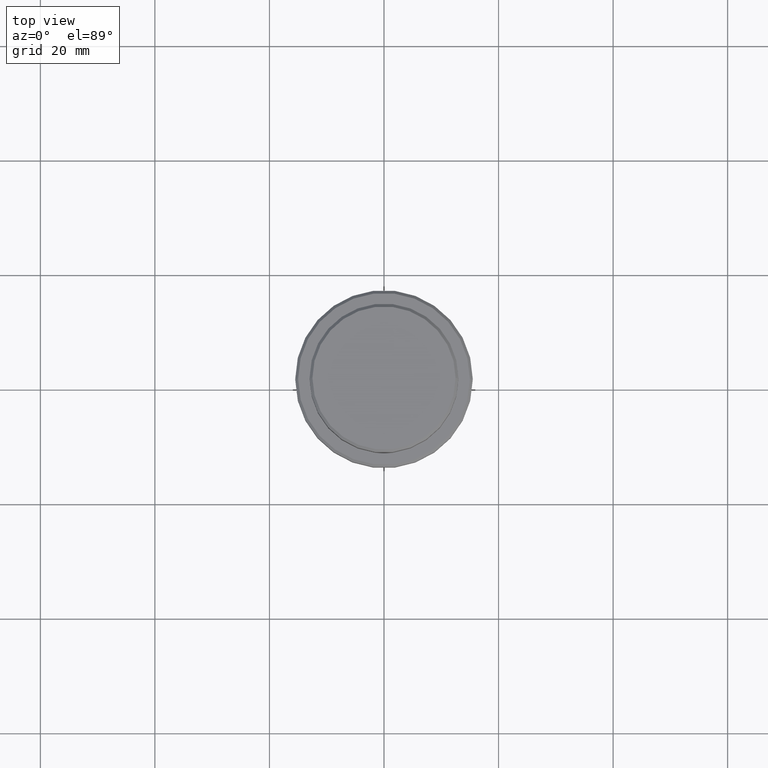
[diagram: clean part render]
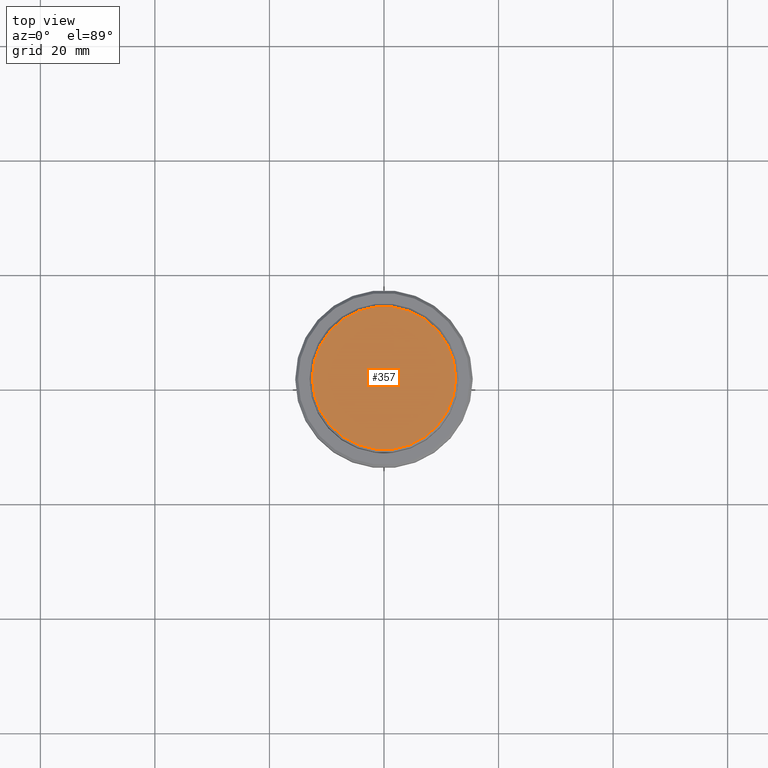
[diagram: same view with one face highlighted and labeled with its STEP entity id]
A machine part, top view. The second image highlights one B-rep face of the part: STEP entity #357.
In plain terms, the highlighted planar face has unit normal (0, -0, 1).
Its self-contained STEP definition (entity closure, byte-faithful):
#19 = AXIS2_PLACEMENT_3D ( 'NONE', #1372, #1262, #1046 ) ;
#120 = VERTEX_POINT ( 'NONE', #1127 ) ;
#225 = EDGE_LOOP ( 'NONE', ( #731, #359 ) ) ;
#266 = CARTESIAN_POINT ( 'NONE',  ( 0.000000000000000000, 0.000000000000000000, 0.000000000000000000 ) ) ;
#344 = EDGE_CURVE ( 'NONE', #965, #120, #606, .T. ) ;
#357 = ADVANCED_FACE ( 'NONE', ( #1103 ), #1360, .T. ) ;
#359 = ORIENTED_EDGE ( 'NONE', *, *, #344, .T. ) ;
#594 = DIRECTION ( 'NONE',  ( 1.000000000000000000, 0.000000000000000000, 0.000000000000000000 ) ) ;
#596 = EDGE_CURVE ( 'NONE', #120, #965, #1272, .T. ) ;
#606 = CIRCLE ( 'NONE', #1408, 12.49999999999997158 ) ;
#731 = ORIENTED_EDGE ( 'NONE', *, *, #596, .T. ) ;
#790 = CARTESIAN_POINT ( 'NONE',  ( 0.000000000000000000, 0.000000000000000000, 0.000000000000000000 ) ) ;
#920 = DIRECTION ( 'NONE',  ( -0.000000000000000000, -0.000000000000000000, 1.000000000000000000 ) ) ;
#924 = CARTESIAN_POINT ( 'NONE',  ( 12.49999999999997158, 1.561424668912873336E-15, 0.000000000000000000 ) ) ;
#965 = VERTEX_POINT ( 'NONE', #924 ) ;
#1035 = AXIS2_PLACEMENT_3D ( 'NONE', #266, #1339, #594 ) ;
#1046 = DIRECTION ( 'NONE',  ( 1.000000000000000000, 0.000000000000000000, 0.000000000000000000 ) ) ;
#1103 = FACE_OUTER_BOUND ( 'NONE', #225, .T. ) ;
#1127 = CARTESIAN_POINT ( 'NONE',  ( -12.49999999999997158, 0.000000000000000000, 0.000000000000000000 ) ) ;
#1262 = DIRECTION ( 'NONE',  ( -0.000000000000000000, -0.000000000000000000, 1.000000000000000000 ) ) ;
#1272 = CIRCLE ( 'NONE', #19, 12.49999999999997158 ) ;
#1339 = DIRECTION ( 'NONE',  ( 0.000000000000000000, -0.000000000000000000, 1.000000000000000000 ) ) ;
#1347 = DIRECTION ( 'NONE',  ( 1.000000000000000000, 0.000000000000000000, 0.000000000000000000 ) ) ;
#1360 = PLANE ( 'NONE',  #1035 ) ;
#1372 = CARTESIAN_POINT ( 'NONE',  ( 0.000000000000000000, 0.000000000000000000, 0.000000000000000000 ) ) ;
#1408 = AXIS2_PLACEMENT_3D ( 'NONE', #790, #920, #1347 ) ;